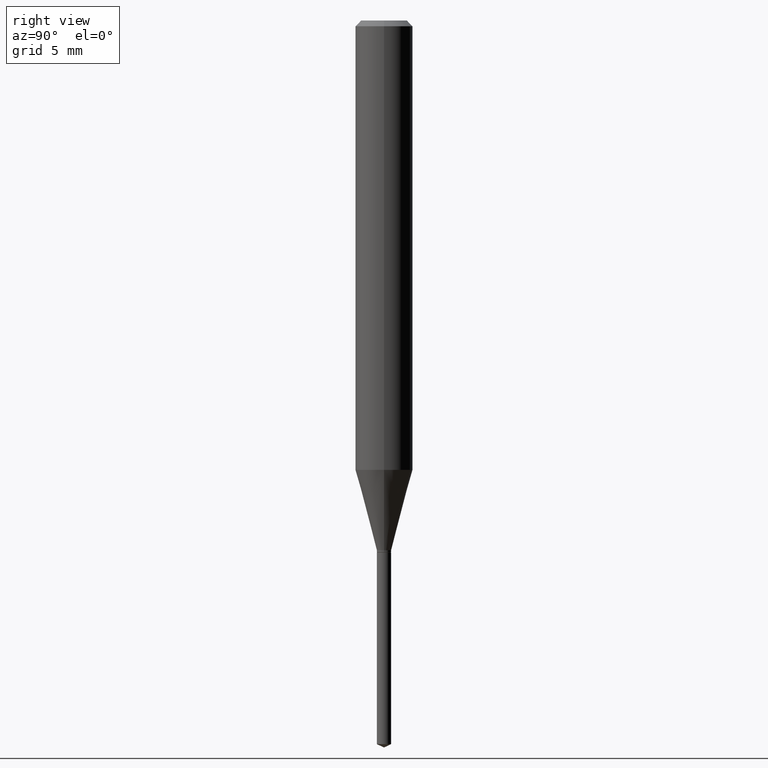
[diagram: clean part render]
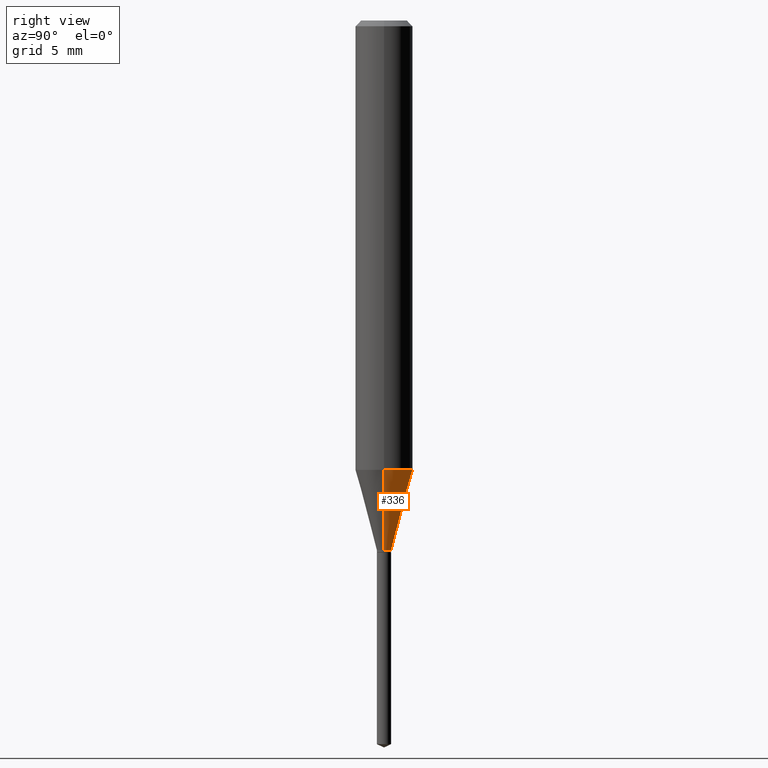
[diagram: same view with one face highlighted and labeled with its STEP entity id]
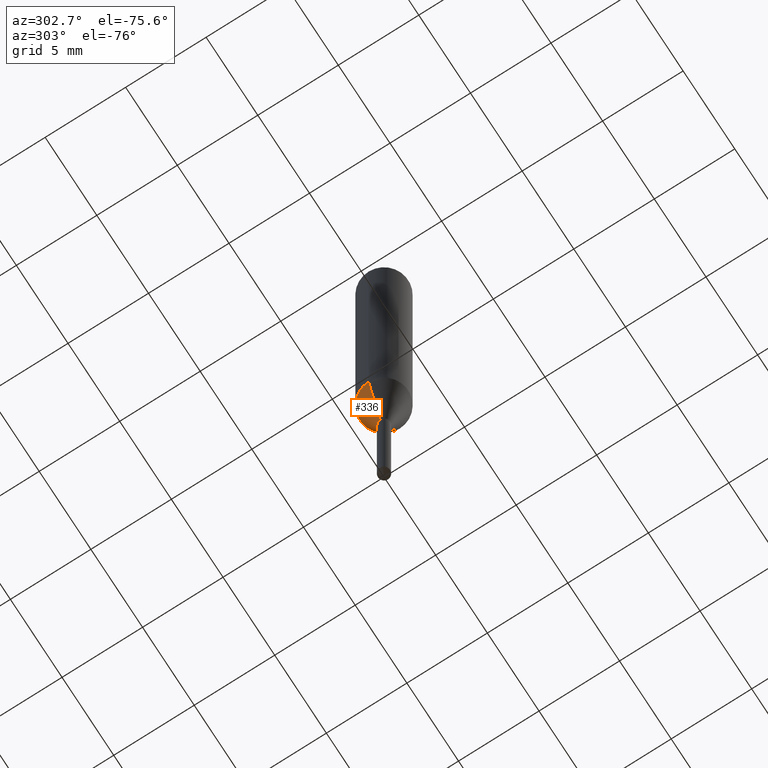
[diagram: same view with one face highlighted and labeled with its STEP entity id]
A machine part, right view. The second image highlights one B-rep face of the part: STEP entity #336.
A second angle (auxiliary view) of the same face is appended — the face is thin or edge-on in the first view.
In plain terms, the highlighted conical surface has half-angle 15 deg.
Its self-contained STEP definition (entity closure, byte-faithful):
#7 = CARTESIAN_POINT ( 'NONE',  ( -0.01474999999999999922, -3.701258753948297685E-15, -1.090099999999999847 ) ) ;
#19 = CARTESIAN_POINT ( 'NONE',  ( 0.05905000000000010935, -3.641161664854600986E-15, -0.9247701492246986898 ) ) ;
#22 = VERTEX_POINT ( 'NONE', #147 ) ;
#34 = LINE ( 'NONE', #7, #81 ) ;
#46 = DIRECTION ( 'NONE',  ( -0.2588190451025213501, 5.211531920934551042E-15, 0.9659258262890682012 ) ) ;
#56 = AXIS2_PLACEMENT_3D ( 'NONE', #371, #301, #162 ) ;
#71 = DIRECTION ( 'NONE',  ( 1.000000000000000000, -6.982962677686267499E-15, 0.000000000000000000 ) ) ;
#81 = VECTOR ( 'NONE', #46, 39.37007874015747433 ) ;
#106 = CONICAL_SURFACE ( 'NONE', #348, 0.01474999999999999922, 0.2617993877991500740 ) ;
#118 = CARTESIAN_POINT ( 'NONE',  ( -0.01474999999999999922, -3.708067142559041944E-15, -1.090099999999999847 ) ) ;
#119 = EDGE_CURVE ( 'NONE', #131, #310, #364, .T. ) ;
#124 = CIRCLE ( 'NONE', #56, 0.01474999999999999922 ) ;
#126 = AXIS2_PLACEMENT_3D ( 'NONE', #167, #209, #71 ) ;
#131 = VERTEX_POINT ( 'NONE', #19 ) ;
#147 = CARTESIAN_POINT ( 'NONE',  ( 0.01474999999999999922, -3.909062506968784619E-15, -1.090099999999999847 ) ) ;
#161 = LINE ( 'NONE', #226, #470 ) ;
#162 = DIRECTION ( 'NONE',  ( 1.000000000000000000, -6.982962677686250933E-15, 0.000000000000000000 ) ) ;
#164 = DIRECTION ( 'NONE',  ( -2.445468806185136597E-29, 3.491481338843145583E-15, 1.000000000000000000 ) ) ;
#167 = CARTESIAN_POINT ( 'NONE',  ( 2.261496552820174511E-29, -3.228817718737226460E-15, -0.9247701492246986898 ) ) ;
#168 = ORIENTED_EDGE ( 'NONE', *, *, #119, .F. ) ;
#197 = FACE_OUTER_BOUND ( 'NONE', #421, .T. ) ;
#207 = ORIENTED_EDGE ( 'NONE', *, *, #235, .F. ) ;
#208 = EDGE_CURVE ( 'NONE', #282, #310, #34, .T. ) ;
#209 = DIRECTION ( 'NONE',  ( -2.445468806185136597E-29, 3.491481338843145583E-15, 1.000000000000000000 ) ) ;
#212 = DIRECTION ( 'NONE',  ( 1.000000000000000000, -6.982962677686250933E-15, 0.000000000000000000 ) ) ;
#226 = CARTESIAN_POINT ( 'NONE',  ( 0.01474999999999999922, -3.909062506968784619E-15, -1.090099999999999847 ) ) ;
#235 = EDGE_CURVE ( 'NONE', #22, #131, #161, .T. ) ;
#238 = ORIENTED_EDGE ( 'NONE', *, *, #261, .T. ) ;
#257 = DIRECTION ( 'NONE',  ( 0.2588190451025213501, 1.565188264969621968E-15, 0.9659258262890682012 ) ) ;
#259 = CARTESIAN_POINT ( 'NONE',  ( -0.05905000000000010935, -2.809242233270886178E-15, -0.9247701492246986898 ) ) ;
#261 = EDGE_CURVE ( 'NONE', #22, #282, #124, .T. ) ;
#279 = ORIENTED_EDGE ( 'NONE', *, *, #208, .T. ) ;
#282 = VERTEX_POINT ( 'NONE', #118 ) ;
#301 = DIRECTION ( 'NONE',  ( -2.445468806185136597E-29, 3.491481338843145583E-15, 1.000000000000000000 ) ) ;
#310 = VERTEX_POINT ( 'NONE', #259 ) ;
#336 = ADVANCED_FACE ( 'NONE', ( #197 ), #106, .T. ) ;
#348 = AXIS2_PLACEMENT_3D ( 'NONE', #464, #164, #212 ) ;
#364 = CIRCLE ( 'NONE', #126, 0.05905000000000010935 ) ;
#371 = CARTESIAN_POINT ( 'NONE',  ( 2.665805545622417047E-29, -3.806063807472912753E-15, -1.090099999999999847 ) ) ;
#421 = EDGE_LOOP ( 'NONE', ( #238, #279, #168, #207 ) ) ;
#464 = CARTESIAN_POINT ( 'NONE',  ( 2.665805545622417047E-29, -3.806063807472912753E-15, -1.090099999999999847 ) ) ;
#470 = VECTOR ( 'NONE', #257, 39.37007874015747433 ) ;